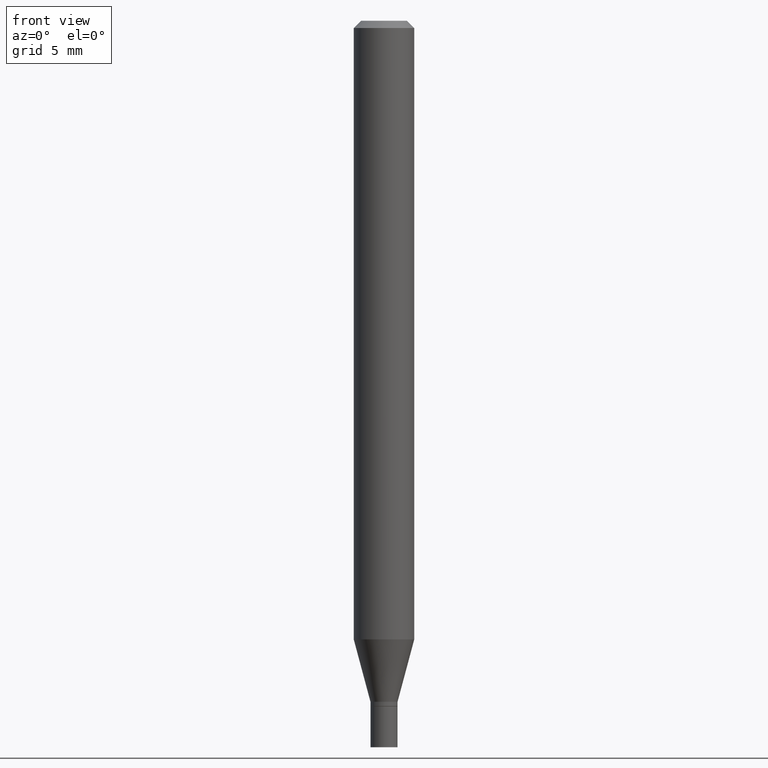
[diagram: clean part render]
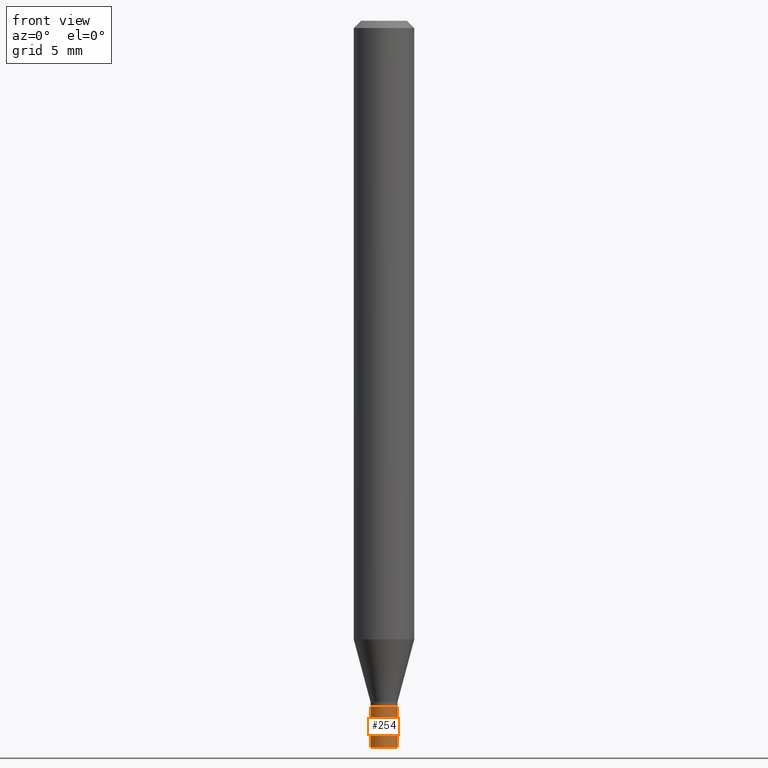
[diagram: same view with one face highlighted and labeled with its STEP entity id]
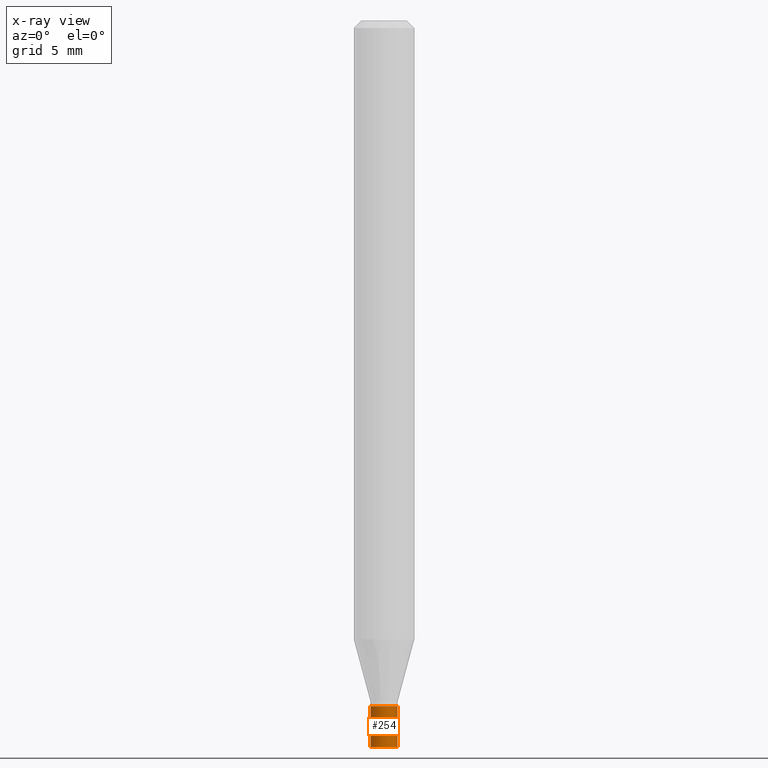
[diagram: x-ray of the same camera — body ghosted, the highlighted face saturated]
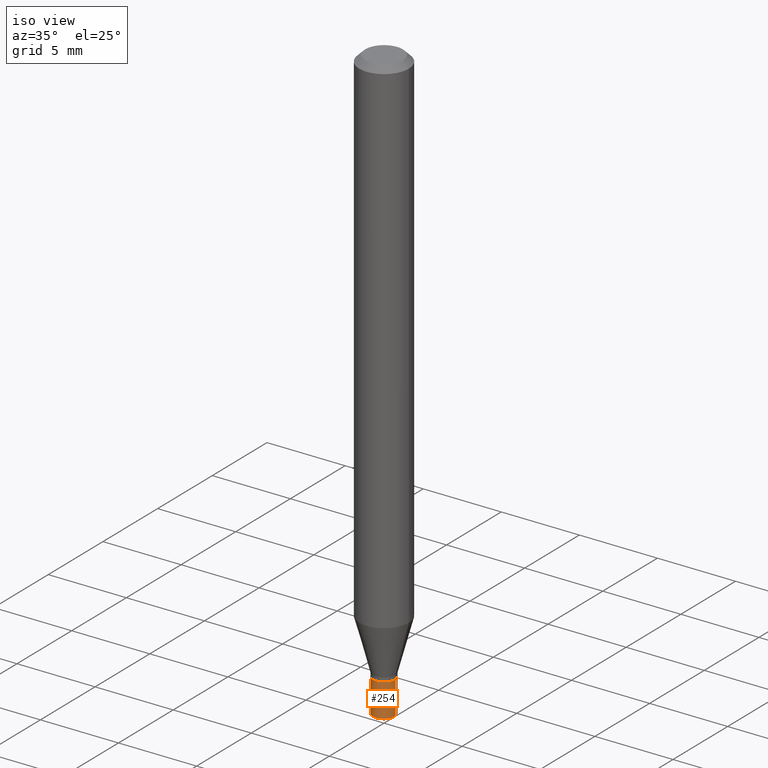
[diagram: same view with one face highlighted and labeled with its STEP entity id]
A machine part, front view. The second image highlights one B-rep face of the part: STEP entity #254.
The next image is the same camera in x-ray: the body ghosted, the highlighted face saturated — about 0% of this face is hidden behind the body in this view.
A second angle (iso view) of the same face is appended — the face is thin or edge-on in the first view.
In plain terms, the highlighted cylindrical surface (edge-blend (fillet) strip) has radius 0.7112 mm, axis along (-0, 0, 1).
Its self-contained STEP definition (entity closure, byte-faithful):
#2 = VERTEX_POINT ( 'NONE', #224 ) ;
#10 = VERTEX_POINT ( 'NONE', #296 ) ;
#11 = AXIS2_PLACEMENT_3D ( 'NONE', #286, #392, #243 ) ;
#25 = AXIS2_PLACEMENT_3D ( 'NONE', #239, #415, #234 ) ;
#40 = ORIENTED_EDGE ( 'NONE', *, *, #402, .F. ) ;
#46 = EDGE_CURVE ( 'NONE', #227, #2, #380, .T. ) ;
#69 = DIRECTION ( 'NONE',  ( 1.000000000000000000, -6.982962677686262766E-15, 0.000000000000000000 ) ) ;
#104 = AXIS2_PLACEMENT_3D ( 'NONE', #374, #116, #69 ) ;
#116 = DIRECTION ( 'NONE',  ( -2.445468806185136597E-29, 3.491481338843145583E-15, 1.000000000000000000 ) ) ;
#137 = ORIENTED_EDGE ( 'NONE', *, *, #431, .T. ) ;
#139 = CARTESIAN_POINT ( 'NONE',  ( -0.02800000000000000405, -4.891627826020478915E-15, -1.500000000000000222 ) ) ;
#167 = EDGE_CURVE ( 'NONE', #10, #2, #283, .T. ) ;
#186 = ORIENTED_EDGE ( 'NONE', *, *, #46, .T. ) ;
#224 = CARTESIAN_POINT ( 'NONE',  ( 0.02800000000000000405, -5.139460530777110033E-15, -1.416000000000000147 ) ) ;
#227 = VERTEX_POINT ( 'NONE', #425 ) ;
#228 = VECTOR ( 'NONE', #232, 39.37007874015748143 ) ;
#232 = DIRECTION ( 'NONE',  ( -2.445468806185136877E-29, 3.491481338843145188E-15, 1.000000000000000000 ) ) ;
#234 = DIRECTION ( 'NONE',  ( 1.000000000000000000, -6.982962677686262766E-15, 0.000000000000000000 ) ) ;
#239 = CARTESIAN_POINT ( 'NONE',  ( 3.462783829558154044E-29, -4.943937575801894533E-15, -1.416000000000000147 ) ) ;
#243 = DIRECTION ( 'NONE',  ( 1.000000000000000000, -6.982962677686266711E-15, 4.876176775795935232E-29 ) ) ;
#244 = CYLINDRICAL_SURFACE ( 'NONE', #11, 0.02800000000000000405 ) ;
#254 = ADVANCED_FACE ( 'NONE', ( #462 ), #244, .T. ) ;
#283 = CIRCLE ( 'NONE', #25, 0.02800000000000000405 ) ;
#286 = CARTESIAN_POINT ( 'NONE',  ( 0.000000000000000000, 0.000000000000000000, 0.000000000000000000 ) ) ;
#296 = CARTESIAN_POINT ( 'NONE',  ( -0.02800000000000000405, -4.891627826020478915E-15, -1.416000000000000147 ) ) ;
#297 = CARTESIAN_POINT ( 'NONE',  ( -0.02800000000000000405, 1.989519660128280808E-16, -1.377301825271373721E-30 ) ) ;
#307 = CARTESIAN_POINT ( 'NONE',  ( 0.02800000000000000405, -1.955229549752154995E-16, 1.365329497222862141E-30 ) ) ;
#324 = ORIENTED_EDGE ( 'NONE', *, *, #167, .F. ) ;
#365 = EDGE_LOOP ( 'NONE', ( #40, #137, #186, #324 ) ) ;
#374 = CARTESIAN_POINT ( 'NONE',  ( 3.668203209277704895E-29, -5.237222008264718177E-15, -1.500000000000000222 ) ) ;
#380 = LINE ( 'NONE', #307, #228 ) ;
#392 = DIRECTION ( 'NONE',  ( -2.445468806185136597E-29, 3.491481338843145583E-15, 1.000000000000000000 ) ) ;
#399 = DIRECTION ( 'NONE',  ( -2.445468806185136877E-29, 3.491481338843145188E-15, 1.000000000000000000 ) ) ;
#402 = EDGE_CURVE ( 'NONE', #407, #10, #436, .T. ) ;
#407 = VERTEX_POINT ( 'NONE', #139 ) ;
#415 = DIRECTION ( 'NONE',  ( -2.445468806185136597E-29, 3.491481338843145583E-15, 1.000000000000000000 ) ) ;
#425 = CARTESIAN_POINT ( 'NONE',  ( 0.02800000000000000405, -5.432744963239933676E-15, -1.500000000000000222 ) ) ;
#431 = EDGE_CURVE ( 'NONE', #407, #227, #454, .T. ) ;
#435 = VECTOR ( 'NONE', #399, 39.37007874015748143 ) ;
#436 = LINE ( 'NONE', #297, #435 ) ;
#454 = CIRCLE ( 'NONE', #104, 0.02800000000000000405 ) ;
#462 = FACE_OUTER_BOUND ( 'NONE', #365, .T. ) ;